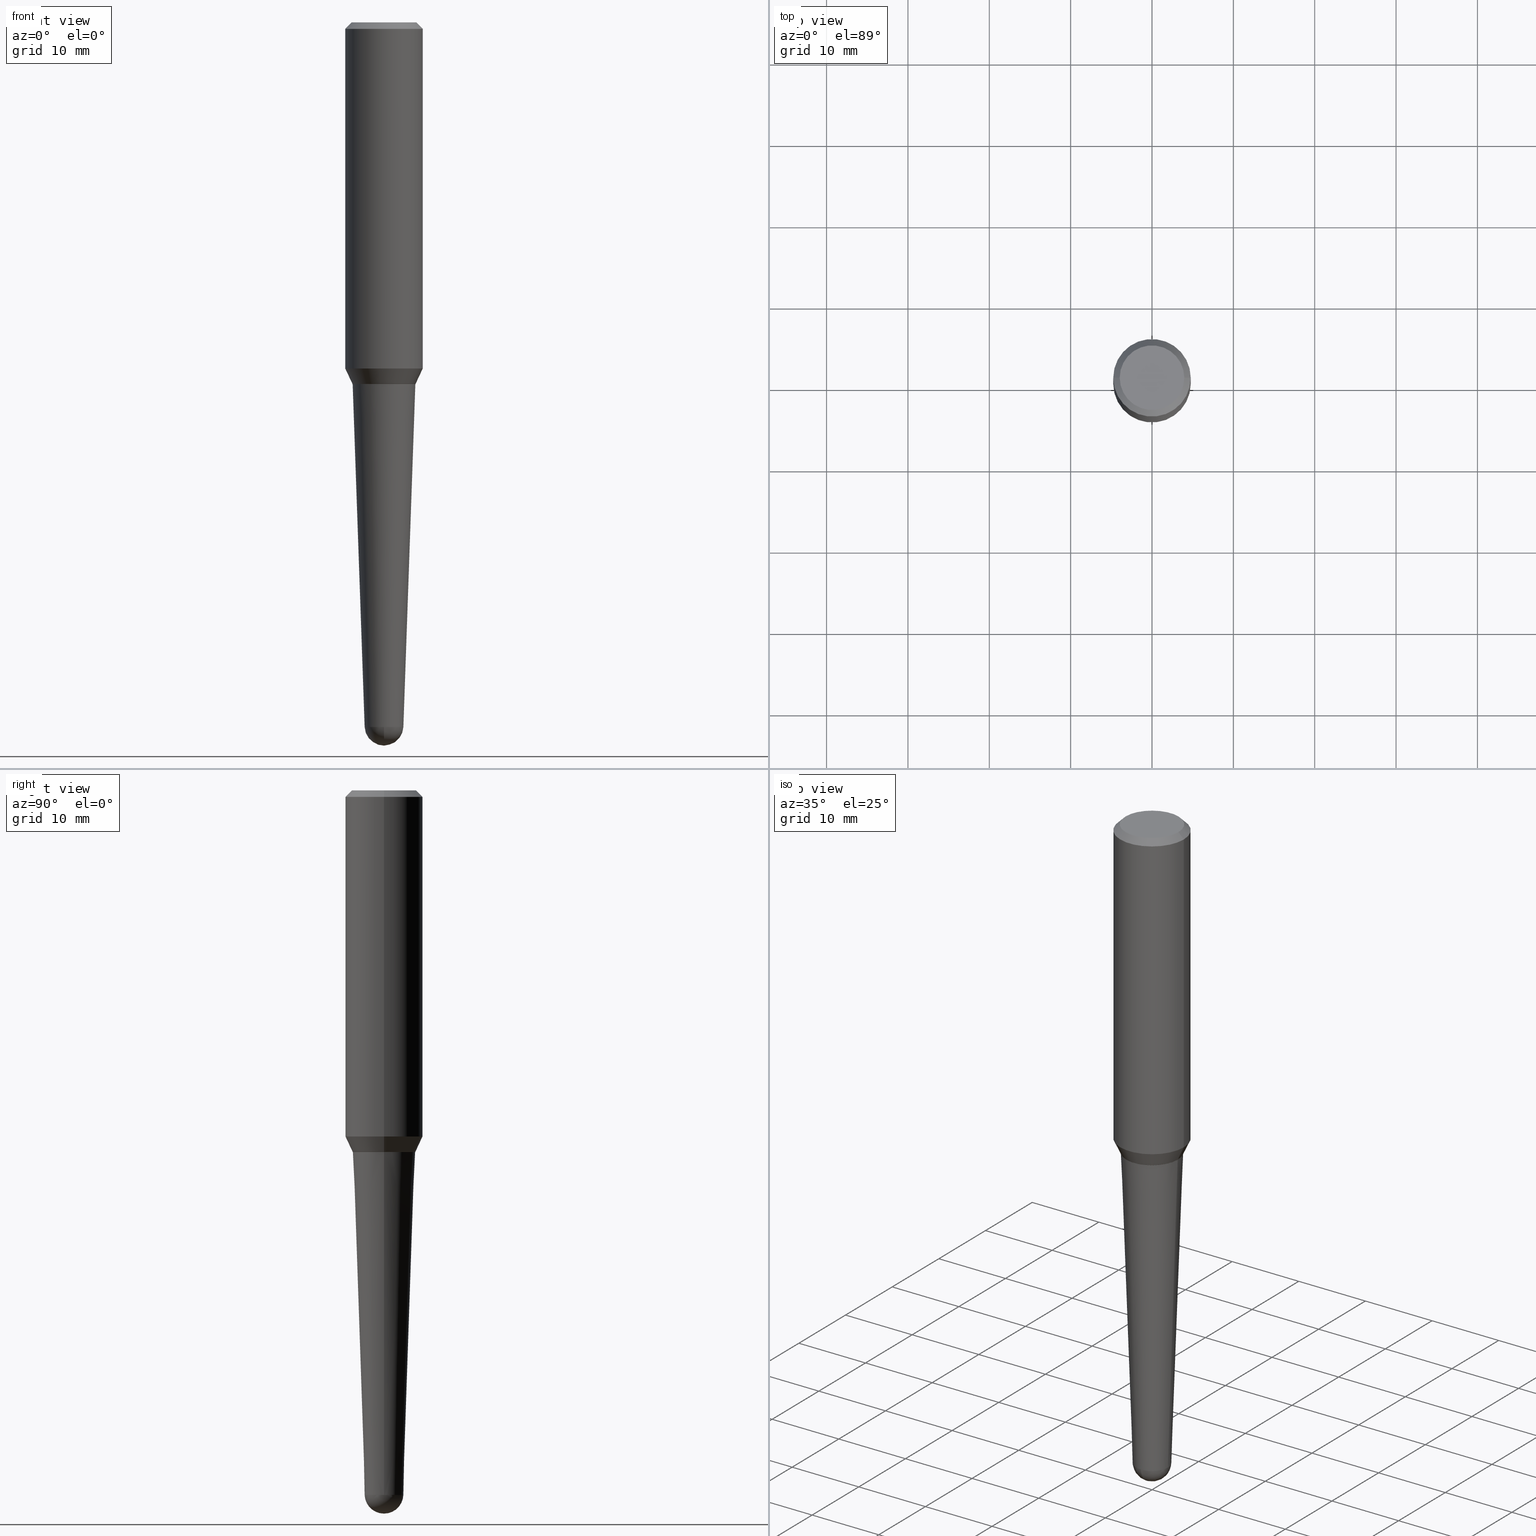
[diagram: canonical four-view strip — front | top / right | iso, engineering-drawing reading convention]
A machine part, canonical four-view strip (front | top / right | iso — engineering-drawing reading convention). The complete STEP part file that produces these views, byte-faithful:
ISO-10303-21;
HEADER;
FILE_DESCRIPTION (( 'STEP AP203' ),
    '1' );
FILE_NAME ('32454.STEP',
    '2024-03-04T15:24:49',
    ( '' ),
    ( '' ),
    'SwSTEP 2.0',
    'SolidWorks 2023',
    '' );
FILE_SCHEMA (( 'CONFIG_CONTROL_DESIGN' ));
ENDSEC;

DATA;
#1 = ORIENTED_EDGE ( 'NONE', *, *, #324, .F. ) ;
#2 = DIRECTION ( 'NONE',  ( -2.445468806185136597E-29, 3.491481338843145583E-15, 1.000000000000000000 ) ) ;
#3 = ORIENTED_EDGE ( 'NONE', *, *, #294, .T. ) ;
#4 = DIRECTION ( 'NONE',  ( -2.445468806185136597E-29, 3.491481338843145583E-15, 1.000000000000000000 ) ) ;
#5 = ORIENTED_EDGE ( 'NONE', *, *, #70, .T. ) ;
#6 = CIRCLE ( 'NONE', #233, 0.09374285957439164318 ) ;
#7 = CARTESIAN_POINT ( 'NONE',  ( 0.1526929536874624127, -7.174595799051309797E-15, -1.749500000000000055 ) ) ;
#8 = LOCAL_TIME ( 10, 24, 49.00000000000000000, #167 ) ;
#9 = ORIENTED_EDGE ( 'NONE', *, *, #62, .T. ) ;
#10 = CARTESIAN_POINT ( 'NONE',  ( 7.642090019328561499E-31, -1.091087918388484350E-16, -0.03125000000000003469 ) ) ;
#11 = EDGE_CURVE ( 'NONE', #385, #171, #181, .T. ) ;
#12 = ORIENTED_EDGE ( 'NONE', *, *, #108, .F. ) ;
#13 = CARTESIAN_POINT ( 'NONE',  ( -1.450455682483482035E-44, 2.070866303999251778E-30, 5.931196827434296760E-16 ) ) ;
#14 = DIRECTION ( 'NONE',  ( 1.000000000000000000, -6.982962677686271444E-15, 0.000000000000000000 ) ) ;
#15 = VECTOR ( 'NONE', #280, 39.37007874015748143 ) ;
#16 = AXIS2_PLACEMENT_3D ( 'NONE', #431, #281, #74 ) ;
#17 = CARTESIAN_POINT ( 'NONE',  ( 4.278347676420896243E-29, -6.108346602306083167E-15, -1.749500000000000055 ) ) ;
#18 = CARTESIAN_POINT ( 'NONE',  ( -0.1875000000000001110, 1.332267629550190807E-15, 5.931196827434205055E-16 ) ) ;
#19 = PRODUCT_DEFINITION ( 'UNKNOWN', '', #140, #204 ) ;
#20 = DIRECTION ( 'NONE',  ( -2.445468806185136597E-29, 3.491481338843145583E-15, 1.000000000000000000 ) ) ;
#21 = COORDINATED_UNIVERSAL_TIME_OFFSET ( 5, 0, .BEHIND. ) ;
#22 = LINE ( 'NONE', #133, #79 ) ;
#23 = CIRCLE ( 'NONE', #86, 0.1874999999999999722 ) ;
#24 = CC_DESIGN_SECURITY_CLASSIFICATION ( #169, ( #140 ) ) ;
#25 = APPROVAL_DATE_TIME ( #228, #325 ) ;
#26 = ADVANCED_FACE ( 'NONE', ( #150 ), #110, .T. ) ;
#27 = SHAPE_DEFINITION_REPRESENTATION ( #435, #388 ) ;
#28 = EDGE_LOOP ( 'NONE', ( #50, #224, #209, #114 ) ) ;
#29 = DATE_TIME_ROLE ( 'classification_date' ) ;
#30 = CIRCLE ( 'NONE', #284, 0.09374285957439164318 ) ;
#31 = ORIENTED_EDGE ( 'NONE', *, *, #424, .T. ) ;
#32 = CARTESIAN_POINT ( 'NONE',  ( 8.337761267772230699E-29, -1.190411335467757546E-14, -3.409473572790693741 ) ) ;
#33 = ORIENTED_EDGE ( 'NONE', *, *, #147, .F. ) ;
#34 = EDGE_CURVE ( 'NONE', #274, #434, #89, .T. ) ;
#35 = DIRECTION ( 'NONE',  ( 0.03489949670250093450, 3.245652539804591788E-15, 0.9993908270190957621 ) ) ;
#36 = VERTEX_POINT ( 'NONE', #247 ) ;
#37 = DIRECTION ( 'NONE',  ( -2.445468806185136597E-29, 3.491481338843145583E-15, 1.000000000000000000 ) ) ;
#38 = EDGE_LOOP ( 'NONE', ( #391, #82, #145, #216, #213 ) ) ;
#39 = AXIS2_PLACEMENT_3D ( 'NONE', #151, #149, #47 ) ;
#40 = CARTESIAN_POINT ( 'NONE',  ( 8.337761267772230699E-29, -1.190411335467757546E-14, -3.409473572790693741 ) ) ;
#41 = ORIENTED_EDGE ( 'NONE', *, *, #383, .F. ) ;
#42 = DIRECTION ( 'NONE',  ( -2.445468806185136597E-29, 3.491481338843145583E-15, 1.000000000000000000 ) ) ;
#43 = ORIENTED_EDGE ( 'NONE', *, *, #450, .F. ) ;
#44 = CYLINDRICAL_SURFACE ( 'NONE', #421, 0.1875000000000001110 ) ;
#45 = ORIENTED_EDGE ( 'NONE', *, *, #394, .T. ) ;
#46 = CIRCLE ( 'NONE', #419, 0.1516929536874624673 ) ;
#47 = DIRECTION ( 'NONE',  ( 1.000000000000000000, -6.982962677686265922E-15, 4.876176775795935793E-29 ) ) ;
#48 = EDGE_CURVE ( 'NONE', #326, #423, #249, .T. ) ;
#49 = VECTOR ( 'NONE', #256, 39.37007874015748854 ) ;
#50 = ORIENTED_EDGE ( 'NONE', *, *, #348, .F. ) ;
#51 = DIRECTION ( 'NONE',  ( -1.000000000000000000, 6.982962677686265922E-15, -4.876176775795935793E-29 ) ) ;
#52 = DIRECTION ( 'NONE',  ( 1.000000000000000000, -6.982962677686274599E-15, 0.000000000000000000 ) ) ;
#53 = DIRECTION ( 'NONE',  ( -1.000000000000000000, 7.105427357601001070E-15, -4.926315508542082329E-29 ) ) ;
#54 = VECTOR ( 'NONE', #329, 39.37007874015748143 ) ;
#55 = AXIS2_PLACEMENT_3D ( 'NONE', #141, #174, #428 ) ;
#56 = LOCAL_TIME ( 10, 24, 49.00000000000000000, #21 ) ;
#57 = CARTESIAN_POINT ( 'NONE',  ( 8.337761267772230699E-29, -1.190411335467757546E-14, -3.409473572790693741 ) ) ;
#58 = PERSON_AND_ORGANIZATION ( #203, #252 ) ;
#59 = LINE ( 'NONE', #101, #242 ) ;
#60 = APPROVAL_STATUS ( 'not_yet_approved' ) ;
#61 = DIRECTION ( 'NONE',  ( 2.438088387897960049E-29, -3.491481338843145188E-15, -1.000000000000000000 ) ) ;
#62 = EDGE_CURVE ( 'NONE', #171, #75, #285, .T. ) ;
#63 = PERSON_AND_ORGANIZATION_ROLE ( 'design_owner' ) ;
#64 = AXIS2_PLACEMENT_3D ( 'NONE', #422, #76, #217 ) ;
#65 = APPROVAL_STATUS ( 'not_yet_approved' ) ;
#66 = PERSON_AND_ORGANIZATION_ROLE ( 'design_supplier' ) ;
#67 = DIRECTION ( 'NONE',  ( -2.445468806185136597E-29, 3.491481338843145583E-15, 1.000000000000000000 ) ) ;
#68 = CONICAL_SURFACE ( 'NONE', #126, 0.1526929536874624127, 0.4363323129985736681 ) ;
#69 = VERTEX_POINT ( 'NONE', #293 ) ;
#70 = EDGE_CURVE ( 'NONE', #130, #99, #304, .T. ) ;
#71 = CC_DESIGN_PERSON_AND_ORGANIZATION_ASSIGNMENT ( #58, #66, ( #140 ) ) ;
#72 = DIRECTION ( 'NONE',  ( 1.000000000000000000, -6.982962677686274599E-15, 0.000000000000000000 ) ) ;
#73 = ORIENTED_EDGE ( 'NONE', *, *, #182, .F. ) ;
#74 = DIRECTION ( 'NONE',  ( 1.000000000000000000, -6.982962677686271444E-15, 0.000000000000000000 ) ) ;
#75 = VERTEX_POINT ( 'NONE', #444 ) ;
#76 = DIRECTION ( 'NONE',  ( -1.000000000000000000, 6.982962677686265133E-15, -4.883557194083111780E-29 ) ) ;
#77 = ADVANCED_FACE ( 'NONE', ( #406 ), #441, .T. ) ;
#78 = CARTESIAN_POINT ( 'NONE',  ( 4.279570410823988484E-29, -6.110092342975504671E-15, -1.750000000000000000 ) ) ;
#79 = VECTOR ( 'NONE', #272, 39.37007874015748143 ) ;
#80 = SPHERICAL_SURFACE ( 'NONE', #64, 0.09380000000000003613 ) ;
#81 = ORIENTED_EDGE ( 'NONE', *, *, #357, .T. ) ;
#82 = ORIENTED_EDGE ( 'NONE', *, *, #316, .T. ) ;
#83 = DIRECTION ( 'NONE',  ( 0.4226182617406915587, 2.132291770428088249E-16, 0.9063077870366536004 ) ) ;
#84 = ORIENTED_EDGE ( 'NONE', *, *, #182, .T. ) ;
#85 = EDGE_CURVE ( 'NONE', #36, #274, #270, .T. ) ;
#86 = AXIS2_PLACEMENT_3D ( 'NONE', #311, #277, #207 ) ;
#87 = ADVANCED_FACE ( 'NONE', ( #124 ), #258, .T. ) ;
#88 = APPROVAL_PERSON_ORGANIZATION ( #236, #243, #200 ) ;
#89 = LINE ( 'NONE', #176, #15 ) ;
#90 = DIRECTION ( 'NONE',  ( -1.000000000000000000, 6.982962677686265133E-15, -4.883557194083111780E-29 ) ) ;
#91 = DIRECTION ( 'NONE',  ( -2.445468806185136597E-29, 3.491481338843145583E-15, 1.000000000000000000 ) ) ;
#92 = AXIS2_PLACEMENT_3D ( 'NONE', #17, #20, #296 ) ;
#93 = DIRECTION ( 'NONE',  ( 1.000000000000000000, -6.982962677686271444E-15, 0.000000000000000000 ) ) ;
#94 = FACE_OUTER_BOUND ( 'NONE', #393, .T. ) ;
#95 = ADVANCED_FACE ( 'NONE', ( #448 ), #350, .T. ) ;
#96 = CALENDAR_DATE ( 2024, 4, 3 ) ;
#97 = DATE_AND_TIME ( #96, #186 ) ;
#98 = AXIS2_PLACEMENT_3D ( 'NONE', #111, #349, #180 ) ;
#99 = VERTEX_POINT ( 'NONE', #193 ) ;
#100 = VERTEX_POINT ( 'NONE', #403 ) ;
#101 = CARTESIAN_POINT ( 'NONE',  ( -0.1521929536874624955, -5.028696366210506774E-15, -1.750000000000000222 ) ) ;
#102 = ADVANCED_FACE ( 'NONE', ( #291 ), #313, .T. ) ;
#103 = ORIENTED_EDGE ( 'NONE', *, *, #262, .T. ) ;
#104 = DIRECTION ( 'NONE',  ( -2.445468806185136597E-29, 3.491481338843145583E-15, 1.000000000000000000 ) ) ;
#105 = AXIS2_PLACEMENT_3D ( 'NONE', #347, #2, #241 ) ;
#106 = CARTESIAN_POINT ( 'NONE',  ( 8.337761267772230699E-29, -1.190411335467757546E-14, -3.409473572790693741 ) ) ;
#107 = EDGE_LOOP ( 'NONE', ( #202, #9, #375, #73 ) ) ;
#108 = EDGE_CURVE ( 'NONE', #171, #437, #368, .T. ) ;
#109 = CARTESIAN_POINT ( 'NONE',  ( 1.878434762360922027E-44, -2.681907003855234996E-30, -7.681286948375465785E-16 ) ) ;
#110 = CYLINDRICAL_SURFACE ( 'NONE', #460, 0.1875000000000001110 ) ;
#111 = CARTESIAN_POINT ( 'NONE',  ( 4.278347676420896243E-29, -6.108346602306083167E-15, -1.749500000000000055 ) ) ;
#112 = ORIENTED_EDGE ( 'NONE', *, *, #153, .F. ) ;
#113 = CONICAL_SURFACE ( 'NONE', #166, 0.09374285957439164318, 0.03490658503988655625 ) ;
#114 = ORIENTED_EDGE ( 'NONE', *, *, #334, .T. ) ;
#115 = CARTESIAN_POINT ( 'NONE',  ( -0.1874999999999999722, 1.200196710227326499E-15, -0.03125000000000003469 ) ) ;
#116 = CARTESIAN_POINT ( 'NONE',  ( -0.1526929536874624127, -5.023397911862285161E-15, -1.749500000000000055 ) ) ;
#117 = ADVANCED_FACE ( 'NONE', ( #191 ), #445, .T. ) ;
#118 = CC_DESIGN_PERSON_AND_ORGANIZATION_ASSIGNMENT ( #205, #128, ( #169 ) ) ;
#119 = CARTESIAN_POINT ( 'NONE',  ( -0.1516929536874624396, -5.032249079889307672E-15, -1.750000000000000000 ) ) ;
#120 = EDGE_LOOP ( 'NONE', ( #417, #5, #164, #452 ) ) ;
#121 = AXIS2_PLACEMENT_3D ( 'NONE', #127, #161, #229 ) ;
#122 = DIRECTION ( 'NONE',  ( 1.000000000000000000, -6.982962677686266711E-15, 0.000000000000000000 ) ) ;
#123 = DIRECTION ( 'NONE',  ( -2.445468806185136597E-29, 3.491481338843145583E-15, 1.000000000000000000 ) ) ;
#124 = FACE_OUTER_BOUND ( 'NONE', #139, .T. ) ;
#125 = CARTESIAN_POINT ( 'NONE',  ( 4.279570410823989044E-29, -6.110092342975505460E-15, -1.750000000000000222 ) ) ;
#126 = AXIS2_PLACEMENT_3D ( 'NONE', #455, #172, #321 ) ;
#127 = CARTESIAN_POINT ( 'NONE',  ( 7.642090019328561499E-31, -1.091087918388484350E-16, -0.03125000000000003469 ) ) ;
#128 = PERSON_AND_ORGANIZATION_ROLE ( 'classification_officer' ) ;
#129 = PERSON_AND_ORGANIZATION ( #203, #252 ) ;
#130 = VERTEX_POINT ( 'NONE', #370 ) ;
#131 = APPROVAL_STATUS ( 'not_yet_approved' ) ;
#132 = AXIS2_PLACEMENT_3D ( 'NONE', #412, #197, #371 ) ;
#133 = CARTESIAN_POINT ( 'NONE',  ( 0.1875000000000001110, -1.309305502066173628E-15, 5.931196827434387479E-16 ) ) ;
#134 = APPLICATION_PROTOCOL_DEFINITION ( 'international standard', 'config_control_design', 1994, #446 ) ;
#135 = CARTESIAN_POINT ( 'NONE',  ( 0.1516929536874624396, -7.169358577043047653E-15, -1.750000000000000000 ) ) ;
#136 = DIRECTION ( 'NONE',  ( 1.000000000000000000, -6.982962677686274599E-15, 0.000000000000000000 ) ) ;
#137 = CLOSED_SHELL ( 'NONE', ( #230, #26, #377, #87, #443, #117, #401, #418, #102, #165 ) ) ;
#138 = AXIS2_PLACEMENT_3D ( 'NONE', #195, #157, #226 ) ;
#139 = EDGE_LOOP ( 'NONE', ( #220, #415, #318, #315 ) ) ;
#140 = PRODUCT_DEFINITION_FORMATION_WITH_SPECIFIED_SOURCE ( 'ANY', '', #364, .NOT_KNOWN. ) ;
#141 = CARTESIAN_POINT ( 'NONE',  ( 7.642090019328561499E-31, -1.091087918388484350E-16, -0.03125000000000003469 ) ) ;
#142 = CARTESIAN_POINT ( 'NONE',  ( -1.450455682483482035E-44, 2.070866303999251778E-30, 5.931196827434296760E-16 ) ) ;
#143 = DIRECTION ( 'NONE',  ( -2.445468806185136597E-29, 3.491481338843145583E-15, 1.000000000000000000 ) ) ;
#144 = DIRECTION ( 'NONE',  ( 1.000000000000000000, -6.982962677686274599E-15, 0.000000000000000000 ) ) ;
#145 = ORIENTED_EDGE ( 'NONE', *, *, #184, .T. ) ;
#146 = FACE_OUTER_BOUND ( 'NONE', #238, .T. ) ;
#147 = EDGE_CURVE ( 'NONE', #36, #385, #59, .T. ) ;
#148 = APPROVAL ( #131, 'UNSPECIFIED' ) ;
#149 = DIRECTION ( 'NONE',  ( -2.438088387897960049E-29, 3.491481338843145188E-15, 1.000000000000000000 ) ) ;
#150 = FACE_OUTER_BOUND ( 'NONE', #107, .T. ) ;
#151 = CARTESIAN_POINT ( 'NONE',  ( 4.279570410823989044E-29, -6.110092342975505460E-15, -1.750000000000000222 ) ) ;
#152 = CARTESIAN_POINT ( 'NONE',  ( -0.1562500000000006106, 1.145642314307903724E-15, -7.681286948375542698E-16 ) ) ;
#153 = EDGE_CURVE ( 'NONE', #385, #434, #192, .T. ) ;
#154 = VECTOR ( 'NONE', #35, 39.37007874015748143 ) ;
#155 = CC_DESIGN_APPROVAL ( #243, ( #169 ) ) ;
#156 = DIRECTION ( 'NONE',  ( -1.000000000000000000, 6.982962677686265922E-15, -4.876176775795935793E-29 ) ) ;
#157 = DIRECTION ( 'NONE',  ( 1.000000000000000000, -6.982962677686265922E-15, 4.883557194083112340E-29 ) ) ;
#158 = DIRECTION ( 'NONE',  ( -0.7071067811863543939, 7.493145998869656807E-15, 0.7071067811867406405 ) ) ;
#159 = CIRCLE ( 'NONE', #439, 0.09380000000000003613 ) ;
#160 = CALENDAR_DATE ( 2024, 4, 3 ) ;
#161 = DIRECTION ( 'NONE',  ( 2.445468806185136597E-29, -3.491481338843145583E-15, -1.000000000000000000 ) ) ;
#162 = CC_DESIGN_DATE_AND_TIME_ASSIGNMENT ( #97, #29, ( #169 ) ) ;
#163 = PERSON_AND_ORGANIZATION ( #203, #252 ) ;
#164 = ORIENTED_EDGE ( 'NONE', *, *, #294, .F. ) ;
#165 = ADVANCED_FACE ( 'NONE', ( #94 ), #232, .F. ) ;
#166 = AXIS2_PLACEMENT_3D ( 'NONE', #106, #353, #72 ) ;
#167 = COORDINATED_UNIVERSAL_TIME_OFFSET ( 5, 0, .BEHIND. ) ;
#168 = CC_DESIGN_APPROVAL ( #325, ( #19 ) ) ;
#169 = SECURITY_CLASSIFICATION ( '', '', #273 ) ;
#170 = CARTESIAN_POINT ( 'NONE',  ( -0.09374285957439164318, -1.123803027567794397E-14, -3.409473572790693741 ) ) ;
#171 = VERTEX_POINT ( 'NONE', #336 ) ;
#172 = DIRECTION ( 'NONE',  ( -2.445468806185136597E-29, 3.491481338843145583E-15, 1.000000000000000000 ) ) ;
#173 = ORIENTED_EDGE ( 'NONE', *, *, #201, .T. ) ;
#174 = DIRECTION ( 'NONE',  ( 2.445468806185136597E-29, -3.491481338843145583E-15, -1.000000000000000000 ) ) ;
#175 = AXIS2_PLACEMENT_3D ( 'NONE', #225, #123, #402 ) ;
#176 = CARTESIAN_POINT ( 'NONE',  ( 0.1521929536874624955, -7.172850058381890660E-15, -1.750000000000000222 ) ) ;
#177 = APPROVAL_PERSON_ORGANIZATION ( #267, #148, #405 ) ;
#178 = DIRECTION ( 'NONE',  ( 1.000000000000000000, -6.982962677686268288E-15, 0.000000000000000000 ) ) ;
#179 = EDGE_LOOP ( 'NONE', ( #400, #45, #322, #427, #3 ) ) ;
#180 = DIRECTION ( 'NONE',  ( 1.000000000000000000, -6.982962677686265133E-15, 0.000000000000000000 ) ) ;
#181 = LINE ( 'NONE', #116, #198 ) ;
#182 = EDGE_CURVE ( 'NONE', #437, #352, #22, .T. ) ;
#183 = LINE ( 'NONE', #7, #264 ) ;
#184 = EDGE_CURVE ( 'NONE', #69, #387, #215, .T. ) ;
#185 = CONICAL_SURFACE ( 'NONE', #98, 0.1526929536874624127, 0.4363323129985736681 ) ;
#186 = LOCAL_TIME ( 10, 24, 49.00000000000000000, #266 ) ;
#187 = LINE ( 'NONE', #115, #49 ) ;
#188 = VERTEX_POINT ( 'NONE', #152 ) ;
#189 = FACE_OUTER_BOUND ( 'NONE', #413, .T. ) ;
#190 = CARTESIAN_POINT ( 'NONE',  ( 4.095808220968802460E-29, -5.847728637888946996E-15, -1.674856048300264355 ) ) ;
#191 = FACE_OUTER_BOUND ( 'NONE', #410, .T. ) ;
#192 = CIRCLE ( 'NONE', #92, 0.1526929536874624127 ) ;
#193 = CARTESIAN_POINT ( 'NONE',  ( 6.546028897076445980E-16, 0.09374285957437972217, -3.409473572790694185 ) ) ;
#194 = DATE_AND_TIME ( #307, #8 ) ;
#195 = CARTESIAN_POINT ( 'NONE',  ( 8.580960945074257673E-29, -1.153294373911798500E-14, -3.406199999999999672 ) ) ;
#196 = EDGE_CURVE ( 'NONE', #434, #385, #430, .T. ) ;
#197 = DIRECTION ( 'NONE',  ( 0.000000000000000000, 0.000000000000000000, 1.000000000000000000 ) ) ;
#198 = VECTOR ( 'NONE', #257, 39.37007874015748854 ) ;
#199 = CIRCLE ( 'NONE', #461, 0.1562500000000006106 ) ;
#200 = APPROVAL_ROLE ( '' ) ;
#201 = EDGE_CURVE ( 'NONE', #130, #69, #159, .T. ) ;
#202 = ORIENTED_EDGE ( 'NONE', *, *, #324, .T. ) ;
#203 = PERSON ( 'UNSPECIFIED', 'UNSPECIFIED', 'UNSPECIFIED', ('UNSPECIFIED'), ('UNSPECIFIED'), ('UNSPECIFIED') ) ;
#204 = DESIGN_CONTEXT ( 'detailed design', #446, 'design' ) ;
#205 = PERSON_AND_ORGANIZATION ( #203, #252 ) ;
#206 = VERTEX_POINT ( 'NONE', #384 ) ;
#207 = DIRECTION ( 'NONE',  ( 1.000000000000000000, -6.982962677686266711E-15, 0.000000000000000000 ) ) ;
#208 = CONICAL_SURFACE ( 'NONE', #55, 0.1874999999999999722, 0.7853981633974497223 ) ;
#209 = ORIENTED_EDGE ( 'NONE', *, *, #450, .T. ) ;
#210 = FACE_OUTER_BOUND ( 'NONE', #120, .T. ) ;
#211 = ORIENTED_EDGE ( 'NONE', *, *, #262, .F. ) ;
#212 = DIRECTION ( 'NONE',  ( 1.000000000000000000, -6.982962677686274599E-15, 0.000000000000000000 ) ) ;
#213 = ORIENTED_EDGE ( 'NONE', *, *, #234, .F. ) ;
#214 = CARTESIAN_POINT ( 'NONE',  ( 4.279570410823988484E-29, -6.110092342975504671E-15, -1.750000000000000000 ) ) ;
#215 = CIRCLE ( 'NONE', #369, 0.09374285957439164318 ) ;
#216 = ORIENTED_EDGE ( 'NONE', *, *, #276, .T. ) ;
#217 = DIRECTION ( 'NONE',  ( 6.982962677686265133E-15, 1.000000000000000000, -5.824835807386486631E-15 ) ) ;
#218 = ORIENTED_EDGE ( 'NONE', *, *, #234, .T. ) ;
#219 = EDGE_LOOP ( 'NONE', ( #344, #173, #251, #41 ) ) ;
#220 = ORIENTED_EDGE ( 'NONE', *, *, #223, .T. ) ;
#221 = AXIS2_PLACEMENT_3D ( 'NONE', #372, #61, #156 ) ;
#222 = CARTESIAN_POINT ( 'NONE',  ( 4.279570410823988484E-29, -6.110092342975504671E-15, -1.750000000000000000 ) ) ;
#223 = EDGE_CURVE ( 'NONE', #274, #36, #453, .T. ) ;
#224 = ORIENTED_EDGE ( 'NONE', *, *, #357, .F. ) ;
#225 = CARTESIAN_POINT ( 'NONE',  ( 4.278347676420896243E-29, -6.108346602306083167E-15, -1.749500000000000055 ) ) ;
#226 = DIRECTION ( 'NONE',  ( 6.982962677686265133E-15, 1.000000000000000000, 0.000000000000000000 ) ) ;
#227 = APPROVAL_PERSON_ORGANIZATION ( #408, #325, #335 ) ;
#228 = DATE_AND_TIME ( #160, #56 ) ;
#229 = DIRECTION ( 'NONE',  ( -1.000000000000000000, 6.982962677686266711E-15, 0.000000000000000000 ) ) ;
#230 = ADVANCED_FACE ( 'NONE', ( #248 ), #208, .T. ) ;
#231 = MECHANICAL_CONTEXT ( 'NONE', #420, 'mechanical' ) ;
#232 = PLANE ( 'NONE',  #221 ) ;
#233 = AXIS2_PLACEMENT_3D ( 'NONE', #32, #42, #212 ) ;
#234 = EDGE_CURVE ( 'NONE', #423, #326, #46, .T. ) ;
#235 = CIRCLE ( 'NONE', #381, 0.1874999999999999722 ) ;
#236 = PERSON_AND_ORGANIZATION ( #203, #252 ) ;
#237 = APPLICATION_PROTOCOL_DEFINITION ( 'international standard', 'config_control_design', 1994, #420 ) ;
#238 = EDGE_LOOP ( 'NONE', ( #253, #287 ) ) ;
#239 = CARTESIAN_POINT ( 'NONE',  ( 0.09374285957439164318, -9.864037410714093178E-15, -3.409473572790693741 ) ) ;
#240 = EDGE_LOOP ( 'NONE', ( #356, #346, #1, #282 ) ) ;
#241 = DIRECTION ( 'NONE',  ( 1.000000000000000000, -6.982962677686267499E-15, 4.891558762689325657E-29 ) ) ;
#242 = VECTOR ( 'NONE', #158, 39.37007874015748143 ) ;
#243 = APPROVAL ( #65, 'UNSPECIFIED' ) ;
#244 = DIRECTION ( 'NONE',  ( -7.105427357601001070E-15, -1.000000000000000000, 0.000000000000000000 ) ) ;
#245 = ORIENTED_EDGE ( 'NONE', *, *, #48, .T. ) ;
#246 = DIRECTION ( 'NONE',  ( -2.445468806185136597E-29, 3.491481338843145583E-15, 1.000000000000000000 ) ) ;
#247 = CARTESIAN_POINT ( 'NONE',  ( -0.1521929536874624955, -5.026047139036395573E-15, -1.750000000000000222 ) ) ;
#248 = FACE_OUTER_BOUND ( 'NONE', #429, .T. ) ;
#249 = CIRCLE ( 'NONE', #269, 0.1516929536874624673 ) ;
#250 = AXIS2_PLACEMENT_3D ( 'NONE', #462, #37, #389 ) ;
#251 = ORIENTED_EDGE ( 'NONE', *, *, #316, .F. ) ;
#252 = ORGANIZATION ( 'UNSPECIFIED', 'UNSPECIFIED', '' ) ;
#253 = ORIENTED_EDGE ( 'NONE', *, *, #223, .F. ) ;
#254 = DIMENSIONAL_EXPONENTS ( 1.000000000000000000, 0.000000000000000000, 0.000000000000000000, 0.000000000000000000, 0.000000000000000000, 0.000000000000000000, 0.000000000000000000 ) ;
#255 = ORIENTED_EDGE ( 'NONE', *, *, #62, .F. ) ;
#256 = DIRECTION ( 'NONE',  ( -0.7071067811865484609, 2.468850131082267316E-15, -0.7071067811865464625 ) ) ;
#257 = DIRECTION ( 'NONE',  ( -0.4226182617406915587, 6.167240084480793435E-15, 0.9063077870366536004 ) ) ;
#258 = CONICAL_SURFACE ( 'NONE', #297, 0.1521929536874624955, 0.7853981633971751641 ) ;
#259 = CARTESIAN_POINT ( 'NONE',  ( 0.1526929536874624127, -7.174595799051311375E-15, -1.749500000000000055 ) ) ;
#260 = DIRECTION ( 'NONE',  ( 1.000000000000000000, -6.982962677686274599E-15, 0.000000000000000000 ) ) ;
#261 = MANIFOLD_SOLID_BREP ( 'Body-Move/Copy2[2]', #137 ) ;
#262 = EDGE_CURVE ( 'NONE', #206, #188, #330, .T. ) ;
#263 = CARTESIAN_POINT ( 'NONE',  ( 4.279570410823989044E-29, -6.110092342975505460E-15, -1.750000000000000222 ) ) ;
#264 = VECTOR ( 'NONE', #83, 39.37007874015748854 ) ;
#265 = CARTESIAN_POINT ( 'NONE',  ( 8.580960945074257673E-29, -1.153294373911798500E-14, -3.406199999999999672 ) ) ;
#266 = COORDINATED_UNIVERSAL_TIME_OFFSET ( 5, 0, .BEHIND. ) ;
#267 = PERSON_AND_ORGANIZATION ( #203, #252 ) ;
#268 = ORIENTED_EDGE ( 'NONE', *, *, #34, .T. ) ;
#269 = AXIS2_PLACEMENT_3D ( 'NONE', #78, #143, #320 ) ;
#270 = CIRCLE ( 'NONE', #360, 0.1521929536874624955 ) ;
#271 = DATE_TIME_ROLE ( 'creation_date' ) ;
#272 = DIRECTION ( 'NONE',  ( -2.445468806185136877E-29, 3.491481338843145188E-15, 1.000000000000000000 ) ) ;
#273 = SECURITY_CLASSIFICATION_LEVEL ( 'unclassified' ) ;
#274 = VERTEX_POINT ( 'NONE', #317 ) ;
#275 = FACE_OUTER_BOUND ( 'NONE', #38, .T. ) ;
#276 = EDGE_CURVE ( 'NONE', #387, #326, #279, .T. ) ;
#277 = DIRECTION ( 'NONE',  ( -2.445468806185136597E-29, 3.491481338843145583E-15, 1.000000000000000000 ) ) ;
#278 = AXIS2_PLACEMENT_3D ( 'NONE', #265, #90, #404 ) ;
#279 = LINE ( 'NONE', #382, #154 ) ;
#280 = DIRECTION ( 'NONE',  ( 0.7071067811863543939, -2.468850131080234027E-15, 0.7071067811867406405 ) ) ;
#281 = DIRECTION ( 'NONE',  ( -2.445468806185136597E-29, 3.491481338843145583E-15, 1.000000000000000000 ) ) ;
#282 = ORIENTED_EDGE ( 'NONE', *, *, #407, .F. ) ;
#283 = CARTESIAN_POINT ( 'NONE',  ( 0.1874999999999999722, -1.418414293905023123E-15, -0.03125000000000003469 ) ) ;
#284 = AXIS2_PLACEMENT_3D ( 'NONE', #40, #4, #144 ) ;
#285 = LINE ( 'NONE', #18, #54 ) ;
#286 = PLANE ( 'NONE',  #39 ) ;
#287 = ORIENTED_EDGE ( 'NONE', *, *, #85, .F. ) ;
#288 = CARTESIAN_POINT ( 'NONE',  ( 0.1875000000000002220, -7.157034139955123582E-15, -1.674856048300264355 ) ) ;
#289 = DIRECTION ( 'NONE',  ( 1.000000000000000000, -6.982962677686266711E-15, 4.852736867747363404E-29 ) ) ;
#290 =( LENGTH_UNIT ( ) NAMED_UNIT ( * ) SI_UNIT ( $, .METRE. ) );
#291 = FACE_OUTER_BOUND ( 'NONE', #28, .T. ) ;
#292 = AXIS2_PLACEMENT_3D ( 'NONE', #190, #91, #442 ) ;
#293 = CARTESIAN_POINT ( 'NONE',  ( -6.660830789995453065E-16, -0.09374285957440314787, -3.409473572790693296 ) ) ;
#294 = EDGE_CURVE ( 'NONE', #387, #99, #411, .T. ) ;
#295 = DIRECTION ( 'NONE',  ( 1.000000000000000000, -6.982962677686271444E-15, 0.000000000000000000 ) ) ;
#296 = DIRECTION ( 'NONE',  ( 1.000000000000000000, -6.982962677686265133E-15, 0.000000000000000000 ) ) ;
#297 = AXIS2_PLACEMENT_3D ( 'NONE', #367, #331, #295 ) ;
#298 = LOCAL_TIME ( 10, 24, 49.00000000000000000, #300 ) ;
#299 = PERSON_AND_ORGANIZATION ( #203, #252 ) ;
#300 = COORDINATED_UNIVERSAL_TIME_OFFSET ( 5, 0, .BEHIND. ) ;
#301 = ORIENTED_EDGE ( 'NONE', *, *, #348, .T. ) ;
#302 = PERSON_AND_ORGANIZATION_ROLE ( 'creator' ) ;
#303 = ORIENTED_EDGE ( 'NONE', *, *, #11, .F. ) ;
#304 = CIRCLE ( 'NONE', #138, 0.09380000000000003613 ) ;
#305 = AXIS2_PLACEMENT_3D ( 'NONE', #378, #67, #136 ) ;
#306 = LOCAL_TIME ( 10, 24, 49.00000000000000000, #332 ) ;
#307 = CALENDAR_DATE ( 2024, 4, 3 ) ;
#308 = DIRECTION ( 'NONE',  ( -0.03489949670250093450, 3.737330261384646804E-15, 0.9993908270190957621 ) ) ;
#309 = CC_DESIGN_PERSON_AND_ORGANIZATION_ASSIGNMENT ( #299, #447, ( #140 ) ) ;
#310 = ORIENTED_EDGE ( 'NONE', *, *, #407, .T. ) ;
#311 = CARTESIAN_POINT ( 'NONE',  ( 7.642090019328561499E-31, -1.091087918388484350E-16, -0.03125000000000003469 ) ) ;
#312 = LINE ( 'NONE', #456, #338 ) ;
#313 = CONICAL_SURFACE ( 'NONE', #121, 0.1874999999999999722, 0.7853981633974497223 ) ;
#314 = CC_DESIGN_APPROVAL ( #148, ( #140 ) ) ;
#315 = ORIENTED_EDGE ( 'NONE', *, *, #34, .F. ) ;
#316 = EDGE_CURVE ( 'NONE', #100, #69, #6, .T. ) ;
#317 = CARTESIAN_POINT ( 'NONE',  ( 0.1521929536874624955, -7.172850058381890660E-15, -1.750000000000000222 ) ) ;
#318 = ORIENTED_EDGE ( 'NONE', *, *, #196, .F. ) ;
#319 = CARTESIAN_POINT ( 'NONE',  ( -0.1526929536874624127, -5.023397911862285161E-15, -1.749500000000000055 ) ) ;
#320 = DIRECTION ( 'NONE',  ( 1.000000000000000000, -6.982962677686268288E-15, 0.000000000000000000 ) ) ;
#321 = DIRECTION ( 'NONE',  ( 1.000000000000000000, -6.982962677686265133E-15, 0.000000000000000000 ) ) ;
#322 = ORIENTED_EDGE ( 'NONE', *, *, #48, .F. ) ;
#323 = LENGTH_MEASURE_WITH_UNIT ( LENGTH_MEASURE( 0.02539999999999999897 ), #290 );
#324 = EDGE_CURVE ( 'NONE', #437, #171, #390, .T. ) ;
#325 = APPROVAL ( #60, 'UNSPECIFIED' ) ;
#326 = VERTEX_POINT ( 'NONE', #135 ) ;
#327 =( CONVERSION_BASED_UNIT ( 'INCH', #323 ) LENGTH_UNIT ( ) NAMED_UNIT ( #254 ) );
#328 = DIRECTION ( 'NONE',  ( -2.445468806185136597E-29, 3.491481338843145583E-15, 1.000000000000000000 ) ) ;
#329 = DIRECTION ( 'NONE',  ( -2.445468806185136877E-29, 3.491481338843145188E-15, 1.000000000000000000 ) ) ;
#330 = CIRCLE ( 'NONE', #105, 0.1562500000000006106 ) ;
#331 = DIRECTION ( 'NONE',  ( -2.445468806185136597E-29, 3.491481338843145583E-15, 1.000000000000000000 ) ) ;
#332 = COORDINATED_UNIVERSAL_TIME_OFFSET ( 5, 0, .BEHIND. ) ;
#333 = DIRECTION ( 'NONE',  ( -2.445468806185136597E-29, 3.491481338843145583E-15, 1.000000000000000000 ) ) ;
#334 = EDGE_CURVE ( 'NONE', #75, #352, #23, .T. ) ;
#335 = APPROVAL_ROLE ( '' ) ;
#336 = CARTESIAN_POINT ( 'NONE',  ( -0.1875000000000002220, -4.515461008338757570E-15, -1.674856048300264355 ) ) ;
#337 = CLOSED_SHELL ( 'NONE', ( #95, #77, #365, #373, #457 ) ) ;
#338 = VECTOR ( 'NONE', #426, 39.37007874015748854 ) ;
#339 = APPROVAL_DATE_TIME ( #194, #243 ) ;
#340 = CALENDAR_DATE ( 2024, 4, 3 ) ;
#341 = EDGE_LOOP ( 'NONE', ( #245, #218 ) ) ;
#342 = VECTOR ( 'NONE', #308, 39.37007874015748143 ) ;
#343 = LINE ( 'NONE', #170, #342 ) ;
#344 = ORIENTED_EDGE ( 'NONE', *, *, #70, .F. ) ;
#345 = FACE_OUTER_BOUND ( 'NONE', #396, .T. ) ;
#346 = ORIENTED_EDGE ( 'NONE', *, *, #11, .T. ) ;
#347 = CARTESIAN_POINT ( 'NONE',  ( 1.878434762360922027E-44, -2.681907003855234996E-30, -7.681286948375465785E-16 ) ) ;
#348 = EDGE_CURVE ( 'NONE', #206, #352, #312, .T. ) ;
#349 = DIRECTION ( 'NONE',  ( -2.445468806185136597E-29, 3.491481338843145583E-15, 1.000000000000000000 ) ) ;
#350 = CONICAL_SURFACE ( 'NONE', #399, 0.09374285957439164318, 0.03490658503988655625 ) ;
#351 = AXIS2_PLACEMENT_3D ( 'NONE', #222, #433, #51 ) ;
#352 = VERTEX_POINT ( 'NONE', #283 ) ;
#353 = DIRECTION ( 'NONE',  ( -2.445468806185136597E-29, 3.491481338843145583E-15, 1.000000000000000000 ) ) ;
#354 = ORIENTED_EDGE ( 'NONE', *, *, #85, .T. ) ;
#355 =( NAMED_UNIT ( * ) SI_UNIT ( $, .STERADIAN. ) SOLID_ANGLE_UNIT ( ) );
#356 = ORIENTED_EDGE ( 'NONE', *, *, #196, .T. ) ;
#357 = EDGE_CURVE ( 'NONE', #188, #206, #199, .T. ) ;
#358 = DIRECTION ( 'NONE',  ( -2.445468806185136597E-29, 3.491481338843145583E-15, 1.000000000000000000 ) ) ;
#359 = CC_DESIGN_PERSON_AND_ORGANIZATION_ASSIGNMENT ( #163, #302, ( #19 ) ) ;
#360 = AXIS2_PLACEMENT_3D ( 'NONE', #263, #333, #93 ) ;
#361 = DIRECTION ( 'NONE',  ( -2.445468806185136597E-29, 3.491481338843145583E-15, 1.000000000000000000 ) ) ;
#362 = FACE_OUTER_BOUND ( 'NONE', #341, .T. ) ;
#363 = DIRECTION ( 'NONE',  ( -2.445468806185136597E-29, 3.491481338843145583E-15, 1.000000000000000000 ) ) ;
#364 = PRODUCT ( '32454', '32454', '', ( #231 ) ) ;
#365 = ADVANCED_FACE ( 'NONE', ( #210 ), #80, .T. ) ;
#366 = CARTESIAN_POINT ( 'NONE',  ( 8.580960945074257673E-29, -1.153294373911798500E-14, -3.406199999999999672 ) ) ;
#367 = CARTESIAN_POINT ( 'NONE',  ( 4.279570410823989044E-29, -6.110092342975505460E-15, -1.750000000000000222 ) ) ;
#368 = CIRCLE ( 'NONE', #292, 0.1875000000000002220 ) ;
#369 = AXIS2_PLACEMENT_3D ( 'NONE', #414, #363, #52 ) ;
#370 = CARTESIAN_POINT ( 'NONE',  ( 8.814356648990674163E-29, -1.185470109521347181E-14, -3.500000000000000000 ) ) ;
#371 = DIRECTION ( 'NONE',  ( 1.000000000000000000, 0.000000000000000000, 0.000000000000000000 ) ) ;
#372 = CARTESIAN_POINT ( 'NONE',  ( 9.392173811804610133E-45, -1.340953501927617498E-30, -3.840643474187732892E-16 ) ) ;
#373 = ADVANCED_FACE ( 'NONE', ( #275 ), #113, .T. ) ;
#374 = PRODUCT_RELATED_PRODUCT_CATEGORY ( 'detail', '', ( #364 ) ) ;
#375 = ORIENTED_EDGE ( 'NONE', *, *, #424, .F. ) ;
#376 = DATE_AND_TIME ( #340, #306 ) ;
#377 = ADVANCED_FACE ( 'NONE', ( #416 ), #185, .T. ) ;
#378 = CARTESIAN_POINT ( 'NONE',  ( 8.337761267772230699E-29, -1.190411335467757546E-14, -3.409473572790693741 ) ) ;
#379 = ORIENTED_EDGE ( 'NONE', *, *, #108, .T. ) ;
#380 = AXIS2_PLACEMENT_3D ( 'NONE', #125, #440, #14 ) ;
#381 = AXIS2_PLACEMENT_3D ( 'NONE', #10, #358, #122 ) ;
#382 = CARTESIAN_POINT ( 'NONE',  ( 0.09374285957439164318, -1.255871624438513713E-14, -3.409473572790693741 ) ) ;
#383 = EDGE_CURVE ( 'NONE', #99, #100, #30, .T. ) ;
#384 = CARTESIAN_POINT ( 'NONE',  ( 0.1562500000000006106, -1.233702489286409496E-15, -7.681286948375383940E-16 ) ) ;
#385 = VERTEX_POINT ( 'NONE', #319 ) ;
#386 = DIRECTION ( 'NONE',  ( 1.000000000000000000, -6.982962677686267499E-15, 4.891558762689325657E-29 ) ) ;
#387 = VERTEX_POINT ( 'NONE', #239 ) ;
#388 = ADVANCED_BREP_SHAPE_REPRESENTATION ( '32454', ( #425, #261, #132 ), #454 ) ;
#389 = DIRECTION ( 'NONE',  ( 1.000000000000000000, -6.982962677686265133E-15, 0.000000000000000000 ) ) ;
#390 = CIRCLE ( 'NONE', #250, 0.1875000000000002220 ) ;
#391 = ORIENTED_EDGE ( 'NONE', *, *, #394, .F. ) ;
#392 =( NAMED_UNIT ( * ) PLANE_ANGLE_UNIT ( ) SI_UNIT ( $, .RADIAN. ) );
#393 = EDGE_LOOP ( 'NONE', ( #81, #103 ) ) ;
#394 = EDGE_CURVE ( 'NONE', #100, #423, #343, .T. ) ;
#395 = CC_DESIGN_DATE_AND_TIME_ASSIGNMENT ( #451, #271, ( #19 ) ) ;
#396 = EDGE_LOOP ( 'NONE', ( #303, #458, #310, #12 ) ) ;
#397 = UNCERTAINTY_MEASURE_WITH_UNIT (LENGTH_MEASURE( 1.000000000000000082E-05 ), #327, 'distance_accuracy_value', 'NONE');
#398 = DIRECTION ( 'NONE',  ( 1.000000000000000000, -6.982962677686266711E-15, 4.852736867747363404E-29 ) ) ;
#399 = AXIS2_PLACEMENT_3D ( 'NONE', #57, #328, #260 ) ;
#400 = ORIENTED_EDGE ( 'NONE', *, *, #383, .T. ) ;
#401 = ADVANCED_FACE ( 'NONE', ( #345 ), #68, .T. ) ;
#402 = DIRECTION ( 'NONE',  ( 1.000000000000000000, -6.982962677686265133E-15, 0.000000000000000000 ) ) ;
#403 = CARTESIAN_POINT ( 'NONE',  ( -0.09374285957439164318, -8.135139677783627397E-15, -3.409473572790693741 ) ) ;
#404 = DIRECTION ( 'NONE',  ( 6.982962677686265133E-15, 1.000000000000000000, -5.824835807386486631E-15 ) ) ;
#405 = APPROVAL_ROLE ( '' ) ;
#406 = FACE_OUTER_BOUND ( 'NONE', #219, .T. ) ;
#407 = EDGE_CURVE ( 'NONE', #434, #437, #183, .T. ) ;
#408 = PERSON_AND_ORGANIZATION ( #203, #252 ) ;
#409 = APPROVAL_DATE_TIME ( #376, #148 ) ;
#410 = EDGE_LOOP ( 'NONE', ( #33, #354, #268, #112 ) ) ;
#411 = CIRCLE ( 'NONE', #305, 0.09374285957439164318 ) ;
#412 = CARTESIAN_POINT ( 'NONE',  ( 0.000000000000000000, 0.000000000000000000, 0.000000000000000000 ) ) ;
#413 = EDGE_LOOP ( 'NONE', ( #255, #379, #84, #432 ) ) ;
#414 = CARTESIAN_POINT ( 'NONE',  ( 8.337761267772230699E-29, -1.190411335467757546E-14, -3.409473572790693741 ) ) ;
#415 = ORIENTED_EDGE ( 'NONE', *, *, #147, .T. ) ;
#416 = FACE_OUTER_BOUND ( 'NONE', #240, .T. ) ;
#417 = ORIENTED_EDGE ( 'NONE', *, *, #201, .F. ) ;
#418 = ADVANCED_FACE ( 'NONE', ( #189 ), #44, .T. ) ;
#419 = AXIS2_PLACEMENT_3D ( 'NONE', #214, #104, #178 ) ;
#420 = APPLICATION_CONTEXT ( 'configuration controlled 3d designs of mechanical parts and assemblies' ) ;
#421 = AXIS2_PLACEMENT_3D ( 'NONE', #13, #438, #398 ) ;
#422 = CARTESIAN_POINT ( 'NONE',  ( 8.580960945074257673E-29, -1.153294373911798500E-14, -3.406199999999999672 ) ) ;
#423 = VERTEX_POINT ( 'NONE', #119 ) ;
#424 = EDGE_CURVE ( 'NONE', #352, #75, #235, .T. ) ;
#425 = MANIFOLD_SOLID_BREP ( 'Body-Move/Copy2[1]', #337 ) ;
#426 = DIRECTION ( 'NONE',  ( 0.7071067811865484609, -7.319954787623257623E-15, -0.7071067811865464625 ) ) ;
#427 = ORIENTED_EDGE ( 'NONE', *, *, #276, .F. ) ;
#428 = DIRECTION ( 'NONE',  ( -1.000000000000000000, 6.982962677686266711E-15, 0.000000000000000000 ) ) ;
#429 = EDGE_LOOP ( 'NONE', ( #211, #301, #31, #43 ) ) ;
#430 = CIRCLE ( 'NONE', #175, 0.1526929536874624127 ) ;
#431 = CARTESIAN_POINT ( 'NONE',  ( 4.279570410823989044E-29, -6.110092342975505460E-15, -1.750000000000000222 ) ) ;
#432 = ORIENTED_EDGE ( 'NONE', *, *, #334, .F. ) ;
#433 = DIRECTION ( 'NONE',  ( 2.438088387897960049E-29, -3.491481338843145188E-15, -1.000000000000000000 ) ) ;
#434 = VERTEX_POINT ( 'NONE', #259 ) ;
#435 = PRODUCT_DEFINITION_SHAPE ( 'NONE', 'NONE',  #19 ) ;
#436 = PLANE ( 'NONE',  #351 ) ;
#437 = VERTEX_POINT ( 'NONE', #288 ) ;
#438 = DIRECTION ( 'NONE',  ( -2.445468806185136597E-29, 3.491481338843145583E-15, 1.000000000000000000 ) ) ;
#439 = AXIS2_PLACEMENT_3D ( 'NONE', #366, #53, #244 ) ;
#440 = DIRECTION ( 'NONE',  ( -2.445468806185136597E-29, 3.491481338843145583E-15, 1.000000000000000000 ) ) ;
#441 = SPHERICAL_SURFACE ( 'NONE', #278, 0.09380000000000003613 ) ;
#442 = DIRECTION ( 'NONE',  ( 1.000000000000000000, -6.982962677686265133E-15, 0.000000000000000000 ) ) ;
#443 = ADVANCED_FACE ( 'NONE', ( #146 ), #286, .F. ) ;
#444 = CARTESIAN_POINT ( 'NONE',  ( -0.1874999999999999722, -1.646151085313708425E-15, -0.03125000000000003469 ) ) ;
#445 = CONICAL_SURFACE ( 'NONE', #380, 0.1521929536874624955, 0.7853981633971751641 ) ;
#446 = APPLICATION_CONTEXT ( 'configuration controlled 3d designs of mechanical parts and assemblies' ) ;
#447 = PERSON_AND_ORGANIZATION_ROLE ( 'creator' ) ;
#448 = FACE_OUTER_BOUND ( 'NONE', #179, .T. ) ;
#449 = CALENDAR_DATE ( 2024, 4, 3 ) ;
#450 = EDGE_CURVE ( 'NONE', #188, #75, #187, .T. ) ;
#451 = DATE_AND_TIME ( #449, #298 ) ;
#452 = ORIENTED_EDGE ( 'NONE', *, *, #184, .F. ) ;
#453 = CIRCLE ( 'NONE', #16, 0.1521929536874624955 ) ;
#454 =( GEOMETRIC_REPRESENTATION_CONTEXT ( 3 ) GLOBAL_UNCERTAINTY_ASSIGNED_CONTEXT ( ( #397 ) ) GLOBAL_UNIT_ASSIGNED_CONTEXT ( ( #327, #392, #355 ) ) REPRESENTATION_CONTEXT ( 'NONE', 'WORKASPACE' ) );
#455 = CARTESIAN_POINT ( 'NONE',  ( 4.278347676420896243E-29, -6.108346602306083167E-15, -1.749500000000000055 ) ) ;
#456 = CARTESIAN_POINT ( 'NONE',  ( 0.1874999999999999722, -1.395452166421010480E-15, -0.03125000000000003469 ) ) ;
#457 = ADVANCED_FACE ( 'NONE', ( #362 ), #436, .F. ) ;
#458 = ORIENTED_EDGE ( 'NONE', *, *, #153, .T. ) ;
#459 = CC_DESIGN_PERSON_AND_ORGANIZATION_ASSIGNMENT ( #129, #63, ( #364 ) ) ;
#460 = AXIS2_PLACEMENT_3D ( 'NONE', #142, #361, #289 ) ;
#461 = AXIS2_PLACEMENT_3D ( 'NONE', #109, #246, #386 ) ;
#462 = CARTESIAN_POINT ( 'NONE',  ( 4.095808220968802460E-29, -5.847728637888946996E-15, -1.674856048300264355 ) ) ;
ENDSEC;
END-ISO-10303-21;
